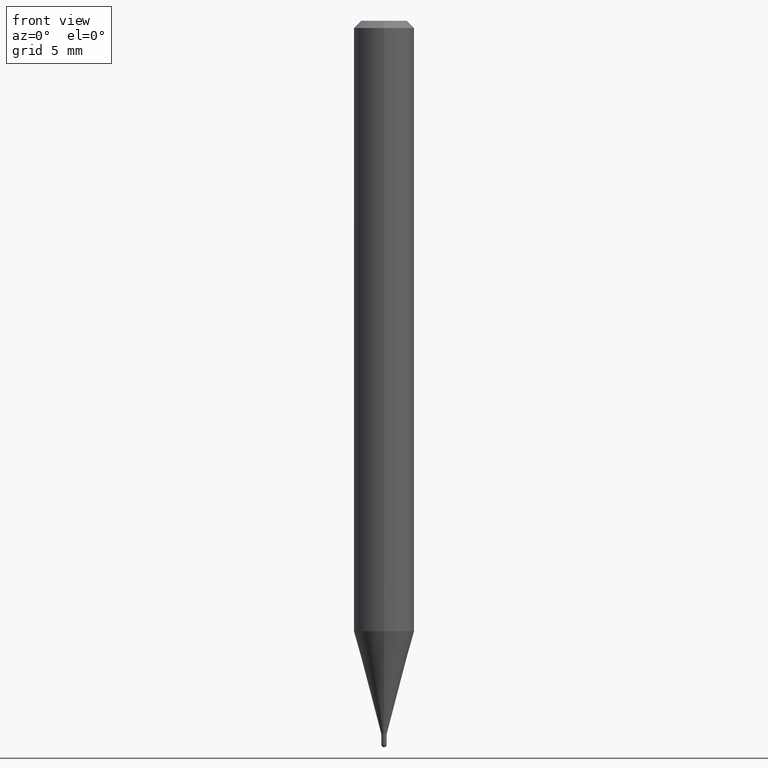
[diagram: clean part render]
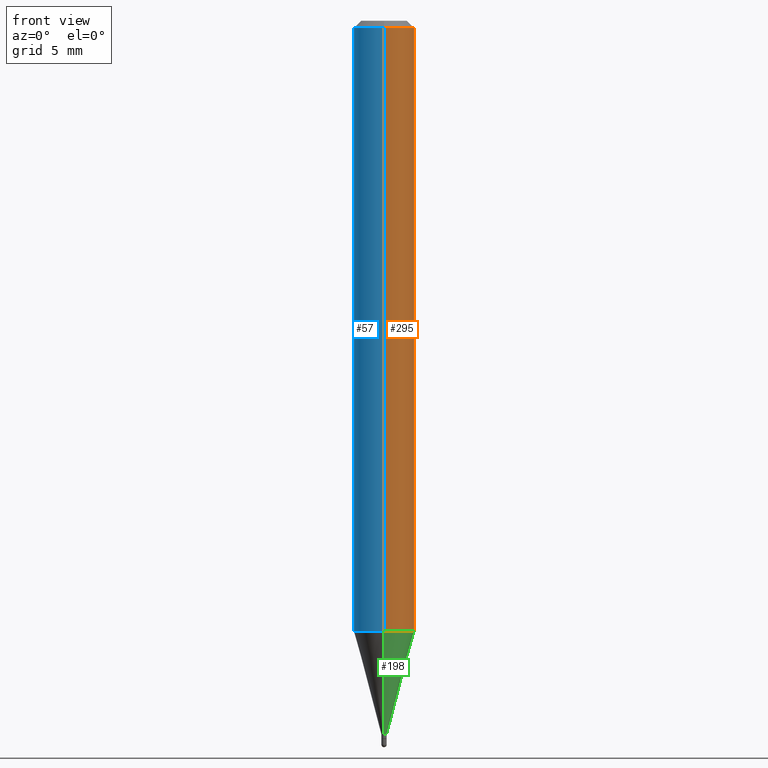
[diagram: same view with three faces highlighted in distinct colors, each labeled with its STEP entity id]
A machine part, front view with three faces highlighted in distinct colors.
Their STEP definitions:

[orange] entity #295 — the highlighted cylindrical surface (edge-blend (fillet) strip) has radius 1.5875 mm, axis along (-0, 0, 1).
#39 = VECTOR ( 'NONE', #485, 39.37007874015748143 ) ;
#53 = ORIENTED_EDGE ( 'NONE', *, *, #309, .F. ) ;
#66 = EDGE_LOOP ( 'NONE', ( #369, #265, #53, #419 ) ) ;
#87 = CARTESIAN_POINT ( 'NONE',  ( -4.364351673553912750E-16, -0.06250000000000005551, -0.01499999999999979128 ) ) ;
#90 = VECTOR ( 'NONE', #404, 39.37007874015748143 ) ;
#93 = VERTEX_POINT ( 'NONE', #474 ) ;
#94 = CARTESIAN_POINT ( 'NONE',  ( 3.668226220345980741E-31, -5.237189055105244947E-17, -0.01500000000000000812 ) ) ;
#131 = DIRECTION ( 'NONE',  ( -2.445484146897318999E-29, 3.491459370070161145E-15, 1.000000000000000000 ) ) ;
#155 = CARTESIAN_POINT ( 'NONE',  ( 4.440892098500625669E-16, 0.06250000000000000000, -2.182162106293850716E-16 ) ) ;
#163 = CIRCLE ( 'NONE', #412, 0.06250000000000000000 ) ;
#164 = DIRECTION ( 'NONE',  ( -6.982962677686265922E-15, -1.000000000000000000, 3.483106191921935554E-15 ) ) ;
#175 = FACE_OUTER_BOUND ( 'NONE', #66, .T. ) ;
#177 = DIRECTION ( 'NONE',  ( -6.982962677686265922E-15, -1.000000000000000000, 4.370956789862821150E-15 ) ) ;
#184 = EDGE_CURVE ( 'NONE', #374, #202, #319, .T. ) ;
#188 = EDGE_CURVE ( 'NONE', #93, #197, #434, .T. ) ;
#197 = VERTEX_POINT ( 'NONE', #87 ) ;
#200 = CARTESIAN_POINT ( 'NONE',  ( 0.000000000000000000, 0.000000000000000000, 0.000000000000000000 ) ) ;
#202 = VERTEX_POINT ( 'NONE', #437 ) ;
#204 = CYLINDRICAL_SURFACE ( 'NONE', #255, 0.06250000000000000000 ) ;
#218 = DIRECTION ( 'NONE',  ( -2.445484146897318999E-29, 3.491459370070161145E-15, 1.000000000000000000 ) ) ;
#240 = CIRCLE ( 'NONE', #445, 0.06250000000000000000 ) ;
#245 = DIRECTION ( 'NONE',  ( -2.445484146897318999E-29, 3.491459370070161145E-15, 1.000000000000000000 ) ) ;
#255 = AXIS2_PLACEMENT_3D ( 'NONE', #200, #131, #447 ) ;
#265 = ORIENTED_EDGE ( 'NONE', *, *, #184, .T. ) ;
#295 = ADVANCED_FACE ( 'NONE', ( #175 ), #204, .T. ) ;
#309 = EDGE_CURVE ( 'NONE', #197, #202, #163, .T. ) ;
#319 = LINE ( 'NONE', #155, #39 ) ;
#348 = CARTESIAN_POINT ( 'NONE',  ( 3.081977896516226036E-29, -4.400192337698486268E-15, -1.260273103968574615 ) ) ;
#369 = ORIENTED_EDGE ( 'NONE', *, *, #405, .T. ) ;
#374 = VERTEX_POINT ( 'NONE', #415 ) ;
#404 = DIRECTION ( 'NONE',  ( -2.445484146897319279E-29, 3.491459370070161539E-15, 1.000000000000000000 ) ) ;
#405 = EDGE_CURVE ( 'NONE', #93, #374, #240, .T. ) ;
#412 = AXIS2_PLACEMENT_3D ( 'NONE', #94, #245, #164 ) ;
#415 = CARTESIAN_POINT ( 'NONE',  ( 4.440892098500932831E-16, 0.06249999999999558686, -1.260273103968574837 ) ) ;
#419 = ORIENTED_EDGE ( 'NONE', *, *, #188, .F. ) ;
#434 = LINE ( 'NONE', #477, #90 ) ;
#437 = CARTESIAN_POINT ( 'NONE',  ( 4.440892098500935790E-16, 0.06249999999999995143, -0.01500000000000022669 ) ) ;
#445 = AXIS2_PLACEMENT_3D ( 'NONE', #348, #218, #177 ) ;
#447 = DIRECTION ( 'NONE',  ( -6.982962677686265922E-15, -1.000000000000000000, 3.491459370070161145E-15 ) ) ;
#474 = CARTESIAN_POINT ( 'NONE',  ( -4.364351673553608052E-16, -0.06250000000000439926, -1.260273103968574393 ) ) ;
#477 = CARTESIAN_POINT ( 'NONE',  ( -4.364351673553916201E-16, -0.06250000000000000000, 2.182162106293850716E-16 ) ) ;
#485 = DIRECTION ( 'NONE',  ( -2.445484146897319279E-29, 3.491459370070161539E-15, 1.000000000000000000 ) ) ;

[blue] entity #57 — the highlighted cylindrical surface (edge-blend (fillet) strip) has radius 1.5875 mm, axis along (-0, 0, 1).
#7 = DIRECTION ( 'NONE',  ( -6.982962677686265922E-15, -1.000000000000000000, 4.370956789862821150E-15 ) ) ;
#21 = DIRECTION ( 'NONE',  ( -6.982962677686265922E-15, -1.000000000000000000, 3.491459370070161145E-15 ) ) ;
#39 = VECTOR ( 'NONE', #485, 39.37007874015748143 ) ;
#54 = EDGE_CURVE ( 'NONE', #202, #197, #143, .T. ) ;
#57 = ADVANCED_FACE ( 'NONE', ( #400 ), #323, .T. ) ;
#74 = ORIENTED_EDGE ( 'NONE', *, *, #54, .F. ) ;
#86 = DIRECTION ( 'NONE',  ( -6.982962677686265922E-15, -1.000000000000000000, 3.483106191921935554E-15 ) ) ;
#87 = CARTESIAN_POINT ( 'NONE',  ( -4.364351673553912750E-16, -0.06250000000000005551, -0.01499999999999979128 ) ) ;
#90 = VECTOR ( 'NONE', #404, 39.37007874015748143 ) ;
#93 = VERTEX_POINT ( 'NONE', #474 ) ;
#143 = CIRCLE ( 'NONE', #230, 0.06250000000000000000 ) ;
#155 = CARTESIAN_POINT ( 'NONE',  ( 4.440892098500625669E-16, 0.06250000000000000000, -2.182162106293850716E-16 ) ) ;
#165 = EDGE_CURVE ( 'NONE', #374, #93, #462, .T. ) ;
#168 = ORIENTED_EDGE ( 'NONE', *, *, #188, .T. ) ;
#184 = EDGE_CURVE ( 'NONE', #374, #202, #319, .T. ) ;
#188 = EDGE_CURVE ( 'NONE', #93, #197, #434, .T. ) ;
#197 = VERTEX_POINT ( 'NONE', #87 ) ;
#202 = VERTEX_POINT ( 'NONE', #437 ) ;
#216 = EDGE_LOOP ( 'NONE', ( #347, #285, #168, #74 ) ) ;
#230 = AXIS2_PLACEMENT_3D ( 'NONE', #271, #438, #86 ) ;
#271 = CARTESIAN_POINT ( 'NONE',  ( 3.668226220345980741E-31, -5.237189055105244947E-17, -0.01500000000000000812 ) ) ;
#283 = DIRECTION ( 'NONE',  ( -2.445484146897318999E-29, 3.491459370070161145E-15, 1.000000000000000000 ) ) ;
#285 = ORIENTED_EDGE ( 'NONE', *, *, #165, .T. ) ;
#319 = LINE ( 'NONE', #155, #39 ) ;
#323 = CYLINDRICAL_SURFACE ( 'NONE', #433, 0.06250000000000000000 ) ;
#347 = ORIENTED_EDGE ( 'NONE', *, *, #184, .F. ) ;
#357 = DIRECTION ( 'NONE',  ( -2.445484146897318999E-29, 3.491459370070161145E-15, 1.000000000000000000 ) ) ;
#361 = CARTESIAN_POINT ( 'NONE',  ( 0.000000000000000000, 0.000000000000000000, 0.000000000000000000 ) ) ;
#374 = VERTEX_POINT ( 'NONE', #415 ) ;
#394 = AXIS2_PLACEMENT_3D ( 'NONE', #397, #357, #7 ) ;
#397 = CARTESIAN_POINT ( 'NONE',  ( 3.081977896516226036E-29, -4.400192337698486268E-15, -1.260273103968574615 ) ) ;
#400 = FACE_OUTER_BOUND ( 'NONE', #216, .T. ) ;
#404 = DIRECTION ( 'NONE',  ( -2.445484146897319279E-29, 3.491459370070161539E-15, 1.000000000000000000 ) ) ;
#415 = CARTESIAN_POINT ( 'NONE',  ( 4.440892098500932831E-16, 0.06249999999999558686, -1.260273103968574837 ) ) ;
#433 = AXIS2_PLACEMENT_3D ( 'NONE', #361, #283, #21 ) ;
#434 = LINE ( 'NONE', #477, #90 ) ;
#437 = CARTESIAN_POINT ( 'NONE',  ( 4.440892098500935790E-16, 0.06249999999999995143, -0.01500000000000022669 ) ) ;
#438 = DIRECTION ( 'NONE',  ( -2.445484146897318999E-29, 3.491459370070161145E-15, 1.000000000000000000 ) ) ;
#462 = CIRCLE ( 'NONE', #394, 0.06250000000000000000 ) ;
#474 = CARTESIAN_POINT ( 'NONE',  ( -4.364351673553608052E-16, -0.06250000000000439926, -1.260273103968574393 ) ) ;
#477 = CARTESIAN_POINT ( 'NONE',  ( -4.364351673553916201E-16, -0.06250000000000000000, 2.182162106293850716E-16 ) ) ;
#485 = DIRECTION ( 'NONE',  ( -2.445484146897319279E-29, 3.491459370070161539E-15, 1.000000000000000000 ) ) ;

[green] entity #198 — the highlighted conical surface has half-angle 15 deg.
#3 = CARTESIAN_POINT ( 'NONE',  ( 3.907985046684097588E-17, 0.005499999999994779898, -1.473000000000000087 ) ) ;
#5 = DIRECTION ( 'NONE',  ( -6.982962677686265922E-15, -1.000000000000000000, 0.000000000000000000 ) ) ;
#13 = LINE ( 'NONE', #3, #17 ) ;
#14 = VERTEX_POINT ( 'NONE', #491 ) ;
#17 = VECTOR ( 'NONE', #442, 39.37007874015748143 ) ;
#35 = ORIENTED_EDGE ( 'NONE', *, *, #467, .F. ) ;
#43 = CARTESIAN_POINT ( 'NONE',  ( 3.602198148379751749E-29, -5.142919652113348525E-15, -1.473000000000000087 ) ) ;
#75 = EDGE_CURVE ( 'NONE', #14, #289, #98, .T. ) ;
#93 = VERTEX_POINT ( 'NONE', #474 ) ;
#98 = CIRCLE ( 'NONE', #110, 0.005499999999999922486 ) ;
#110 = AXIS2_PLACEMENT_3D ( 'NONE', #393, #127, #5 ) ;
#122 = EDGE_CURVE ( 'NONE', #289, #374, #13, .T. ) ;
#127 = DIRECTION ( 'NONE',  ( -2.445484146897318999E-29, 3.491459370070161145E-15, 1.000000000000000000 ) ) ;
#133 = ORIENTED_EDGE ( 'NONE', *, *, #122, .T. ) ;
#142 = DIRECTION ( 'NONE',  ( -1.807323732225330139E-15, -0.2588190451025181860, 0.9659258262890689783 ) ) ;
#177 = DIRECTION ( 'NONE',  ( -6.982962677686265922E-15, -1.000000000000000000, 4.370956789862821150E-15 ) ) ;
#185 = CONICAL_SURFACE ( 'NONE', #303, 0.005499999999999922486, 0.2617993877991502960 ) ;
#198 = ADVANCED_FACE ( 'NONE', ( #234 ), #185, .T. ) ;
#218 = DIRECTION ( 'NONE',  ( -2.445484146897318999E-29, 3.491459370070161145E-15, 1.000000000000000000 ) ) ;
#234 = FACE_OUTER_BOUND ( 'NONE', #410, .T. ) ;
#239 = DIRECTION ( 'NONE',  ( -6.982962677686265922E-15, -1.000000000000000000, 0.000000000000000000 ) ) ;
#240 = CIRCLE ( 'NONE', #445, 0.06250000000000000000 ) ;
#279 = VECTOR ( 'NONE', #142, 39.37007874015748143 ) ;
#289 = VERTEX_POINT ( 'NONE', #328 ) ;
#303 = AXIS2_PLACEMENT_3D ( 'NONE', #43, #430, #239 ) ;
#328 = CARTESIAN_POINT ( 'NONE',  ( 2.415845301584673113E-16, 0.005499999999994779898, -1.473000000000000087 ) ) ;
#343 = CARTESIAN_POINT ( 'NONE',  ( -3.840629472723789408E-17, -0.005500000000005065073, -1.473000000000000087 ) ) ;
#348 = CARTESIAN_POINT ( 'NONE',  ( 3.081977896516226036E-29, -4.400192337698486268E-15, -1.260273103968574615 ) ) ;
#374 = VERTEX_POINT ( 'NONE', #415 ) ;
#380 = ORIENTED_EDGE ( 'NONE', *, *, #75, .T. ) ;
#390 = ORIENTED_EDGE ( 'NONE', *, *, #405, .F. ) ;
#393 = CARTESIAN_POINT ( 'NONE',  ( 3.602198148379751749E-29, -5.142919652113348525E-15, -1.473000000000000087 ) ) ;
#405 = EDGE_CURVE ( 'NONE', #93, #374, #240, .T. ) ;
#410 = EDGE_LOOP ( 'NONE', ( #380, #133, #390, #35 ) ) ;
#415 = CARTESIAN_POINT ( 'NONE',  ( 4.440892098500932831E-16, 0.06249999999999558686, -1.260273103968574837 ) ) ;
#426 = LINE ( 'NONE', #343, #279 ) ;
#430 = DIRECTION ( 'NONE',  ( -2.445484146897318999E-29, 3.491459370070161145E-15, 1.000000000000000000 ) ) ;
#442 = DIRECTION ( 'NONE',  ( 1.839019923739600315E-15, 0.2588190451025249583, 0.9659258262890670910 ) ) ;
#445 = AXIS2_PLACEMENT_3D ( 'NONE', #348, #218, #177 ) ;
#467 = EDGE_CURVE ( 'NONE', #14, #93, #426, .T. ) ;
#474 = CARTESIAN_POINT ( 'NONE',  ( -4.364351673553608052E-16, -0.06250000000000439926, -1.260273103968574393 ) ) ;
#491 = CARTESIAN_POINT ( 'NONE',  ( -3.840629472723789408E-17, -0.005500000000005065073, -1.473000000000000087 ) ) ;